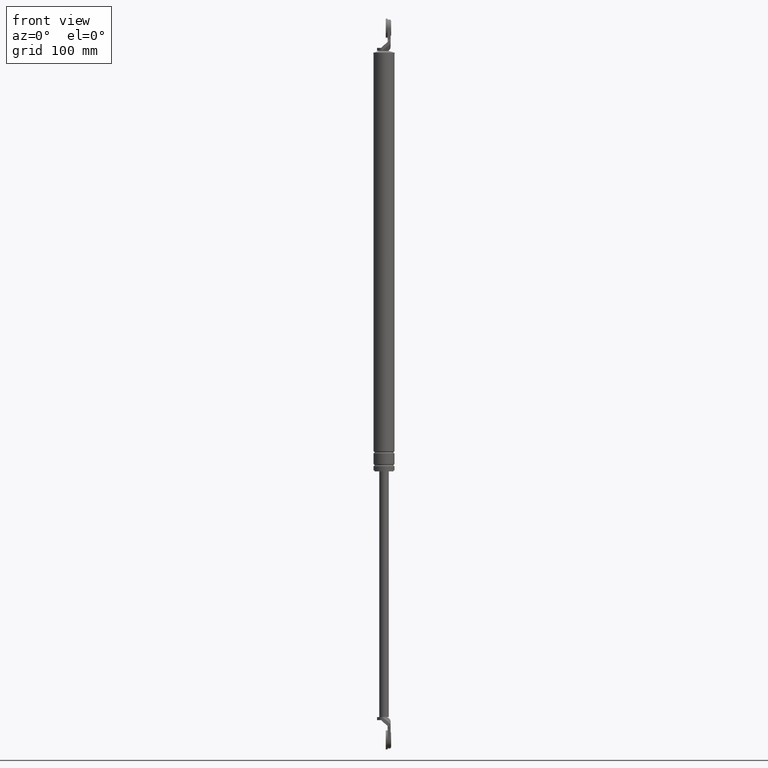
[diagram: clean part render]
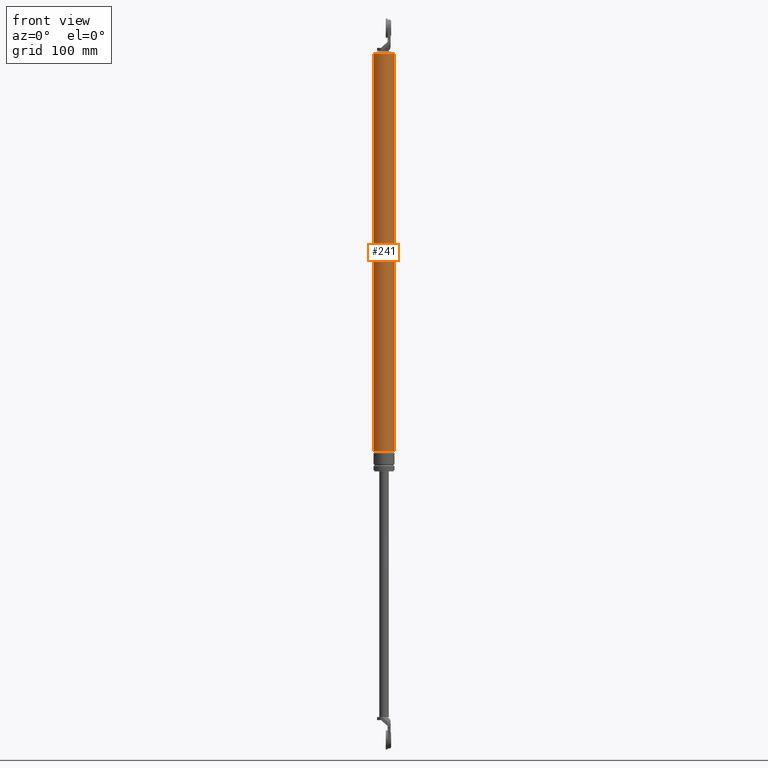
[diagram: same view with one face highlighted and labeled with its STEP entity id]
A machine part, front view. The second image highlights one B-rep face of the part: STEP entity #241.
In plain terms, the highlighted cylindrical surface (edge-blend (fillet) strip) has radius 11 mm, axis along (0, 0, 1).
Its self-contained STEP definition (entity closure, byte-faithful):
#241=ADVANCED_FACE('',(#666),#665,.T.);
#665=CYLINDRICAL_SURFACE('',#1394,1.10000000000E+001);
#666=FACE_OUTER_BOUND('',#1395,.T.);
#1391=CARTESIAN_POINT('',(0.00000000000E+000,3.58204186421E-014,0.00000000000E+000));
#1392=DIRECTION('',(-0.00000000000E+000,-0.00000000000E+000,1.00000000000E+000));
#1393=DIRECTION('',(-1.00000000000E+000,1.22464679915E-016,0.00000000000E+000));
#1394=AXIS2_PLACEMENT_3D('',#1391,#1392,#1393);
#1395=EDGE_LOOP('',(#1942,#1943,#1944,#1945));
#1942=ORIENTED_EDGE('',*,*,#2253,.F.);
#1943=ORIENTED_EDGE('',*,*,#2258,.F.);
#1944=ORIENTED_EDGE('',*,*,#2259,.F.);
#1945=ORIENTED_EDGE('',*,*,#2260,.T.);
#2253=EDGE_CURVE('',#2986,#2985,#2993,.T.);
#2258=EDGE_CURVE('',#3027,#2986,#3028,.T.);
#2259=EDGE_CURVE('',#3034,#3027,#3035,.T.);
#2260=EDGE_CURVE('',#3034,#2985,#3041,.T.);
#2985=VERTEX_POINT('',#4060);
#2986=VERTEX_POINT('',#4061);
#2993=CIRCLE('',#4069,1.10000000000E+001);
#3027=VERTEX_POINT('',#4090);
#3028=(BOUNDED_CURVE() B_SPLINE_CURVE(1,(#4091,#4092),.UNSPECIFIED.,.F.,.F.) B_SPLINE_CURVE_WITH_KNOTS((2,2),(2.27998168213E-002,9.77200183144E-001),.UNSPECIFIED.) CURVE() GEOMETRIC_REPRESENTATION_ITEM() RATIONAL_B_SPLINE_CURVE((1.00000000000E+000,1.00000000000E+000)) REPRESENTATION_ITEM('') );
#3034=VERTEX_POINT('',#4093);
#3035=CIRCLE('',#4097,1.10000000000E+001);
#3041=(BOUNDED_CURVE() B_SPLINE_CURVE(1,(#4098,#4099),.UNSPECIFIED.,.F.,.F.) B_SPLINE_CURVE_WITH_KNOTS((2,2),(2.27998168217E-002,9.77200183178E-001),.UNSPECIFIED.) CURVE() GEOMETRIC_REPRESENTATION_ITEM() RATIONAL_B_SPLINE_CURVE((7.50000000000E-001,7.50000000000E-001)) REPRESENTATION_ITEM('') );
#4060=CARTESIAN_POINT('',(1.10000000000E+001,3.58204186421E-014,8.56000000000E+001));
#4061=CARTESIAN_POINT('',(-1.10000000000E+001,3.61192557345E-014,8.56000000000E+001));
#4066=CARTESIAN_POINT('',(0.00000000000E+000,3.58204186421E-014,8.56000000000E+001));
#4067=DIRECTION('',(0.00000000000E+000,0.00000000000E+000,1.00000000000E+000));
#4068=DIRECTION('',(1.00000000000E+000,-1.22460635382E-016,0.00000000000E+000));
#4069=AXIS2_PLACEMENT_3D('',#4066,#4067,#4068);
#4090=CARTESIAN_POINT('',(-1.10000000000E+001,3.58204186421E-014,-3.33000015000E+002));
#4091=CARTESIAN_POINT('',(-1.10000000000E+001,3.71675301212E-014,-3.33000015000E+002));
#4092=CARTESIAN_POINT('',(-1.10000000000E+001,3.71675301212E-014,8.55999999849E+001));
#4093=CARTESIAN_POINT('',(1.10000000000E+001,3.61192557345E-014,-3.33000015000E+002));
#4094=CARTESIAN_POINT('',(0.00000000000E+000,3.58204186421E-014,-3.33000015000E+002));
#4095=DIRECTION('',(-0.00000000000E+000,0.00000000000E+000,-1.00000000000E+000));
#4096=DIRECTION('',(-1.00000000000E+000,-1.22460635382E-016,0.00000000000E+000));
#4097=AXIS2_PLACEMENT_3D('',#4094,#4095,#4096);
#4098=CARTESIAN_POINT('',(1.10000000000E+001,3.49350178415E-014,-3.33000015000E+002));
#4099=CARTESIAN_POINT('',(1.10000000000E+001,3.49350178415E-014,8.56000000000E+001));